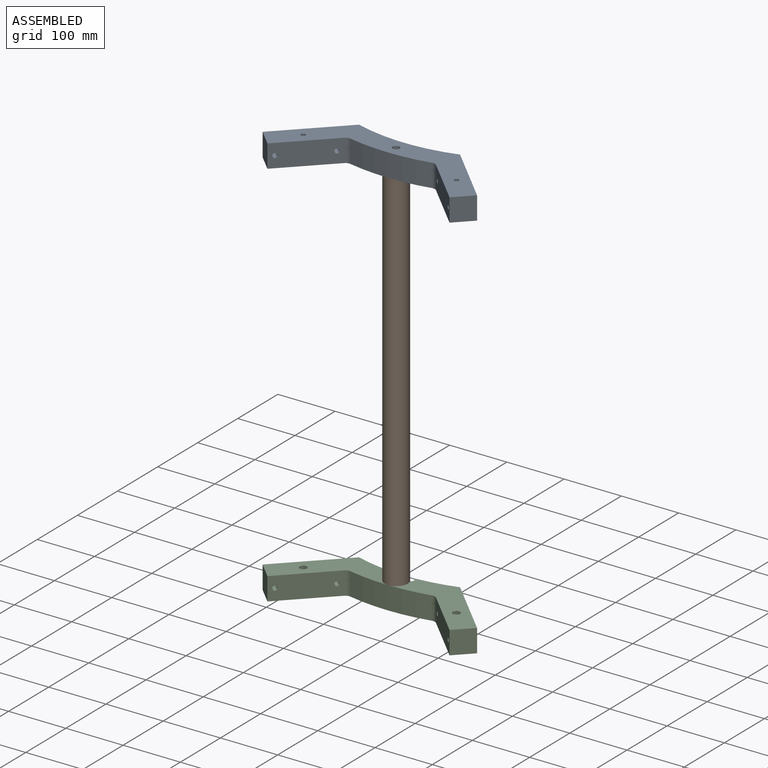
[diagram: assembled view]
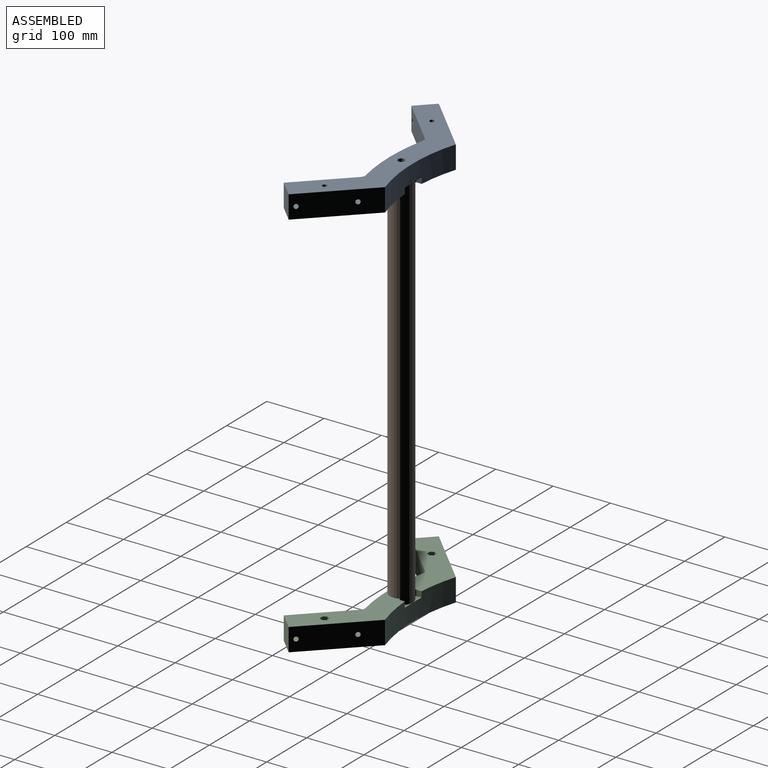
[diagram: assembled view, second angle]
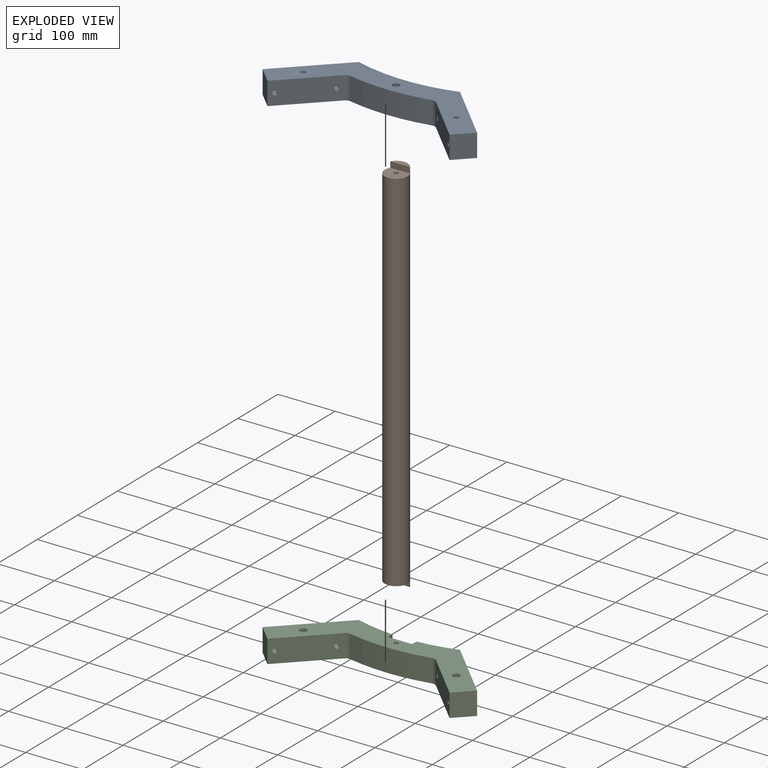
[diagram: exploded view]
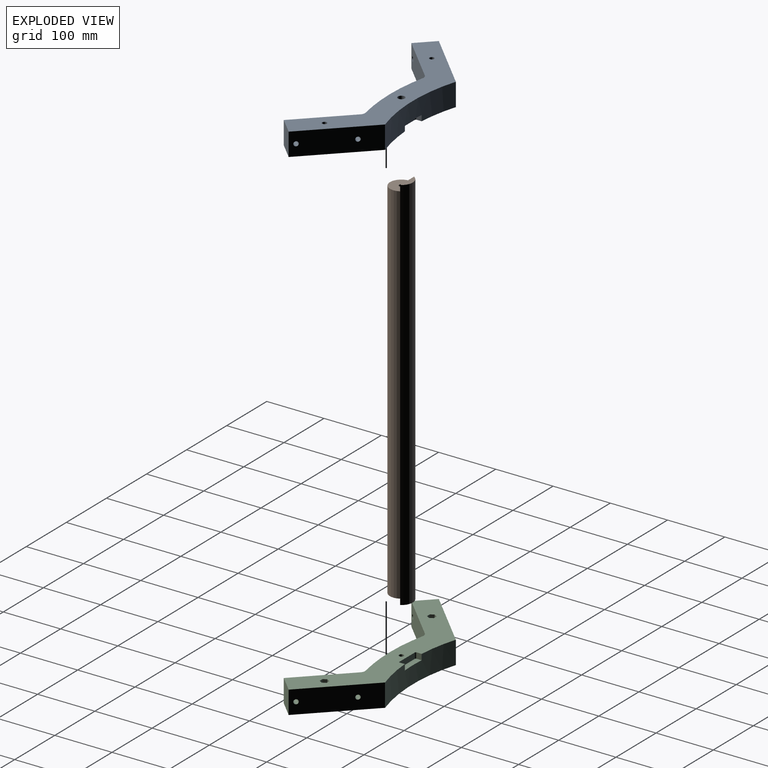
[diagram: exploded view, second angle]
ASSEMBLY  parts=3 mates=2
PART A: 41 faces, bbox 374.6x127.3x40 mm
  f0: plane 374.61x127.28mm, normal (0,0,-1), area 16216.8mm2, adj f1,f4,f5,f6,f7,f8,f9,f10
  f1: cylinder r=300mm len=176.62mm, axis (0,0,1), area 6750.5mm2, adj f0,f5,f13,f14,f35,f36,f37
  f2: cylinder r=4mm len=30mm, axis (0,0,1), area 754mm2, adj f14,f28
  f3: cylinder r=4mm len=30mm, axis (0,0,1), area 754mm2, adj f14,f21
  f4: cylinder r=4mm len=34mm, axis (0,0,1), area 854.5mm2, adj f0,f19
  f5: plane 99x99mm, normal (0.71,0.71,0), area 5499.5mm2, adj f0,f1,f6,f14,f17,f18
  f6: plane 40x28.28mm, normal (0.71,-0.71,0), area 1600mm2, adj f0,f5,f7,f14
  f7: plane 78.79x78.79mm, normal (-0.71,-0.71,0), area 4356.5mm2, adj f0,f6,f8,f14,f17,f18
  f8: cylinder r=10mm len=40mm, axis (0,0,1), area 398.4mm2, adj f0,f7,f9,f14
  f9: cylinder r=340mm len=142.14mm, axis (0,0,1), area 5727.7mm2, adj f0,f8,f10,f14
  f10: cylinder r=10mm len=40mm, axis (0,0,1), area 398.4mm2, adj f0,f9,f11,f14
  f11: plane 78.79x78.79mm, normal (0.71,-0.71,0), area 4356.5mm2, adj f0,f10,f12,f14,f15,f16
  f12: plane 40x28.28mm, normal (-0.71,-0.71,0), area 1600mm2, adj f0,f11,f13,f14
  f13: plane 99x99mm, normal (-0.71,0.71,0), area 5499.5mm2, adj f0,f1,f12,f14,f15,f16
  f14: plane 374.61x127.28mm, normal (0,0,1), area 16731.4mm2, adj f1,f2,f3,f5,f6,f7,f8,f9
  f15: cylinder r=4mm len=33.94mm, axis (0.71,-0.71,0), area 1005.3mm2, adj f11,f13
  f16: cylinder r=4mm len=33.94mm, axis (0.71,-0.71,0), area 1005.3mm2, adj f11,f13
  f17: cylinder r=4mm len=33.94mm, axis (-0.71,-0.71,0), area 1005.3mm2, adj f5,f7
  f18: cylinder r=4mm len=33.94mm, axis (-0.71,-0.71,0), area 1005.3mm2, adj f5,f7
  f19: plane 12x12mm, normal (0,0,1), area 62.8mm2, adj f4,f20
  f20: cylinder r=6mm len=12mm, axis (0,0,1), area 226.2mm2, adj f14,f19
  f21: plane 13.86x12mm, normal (0,0,-1), area 74.4mm2, adj f3,f22,f23,f24,f25,f26,f27
  f22: plane 10x6mm, normal (0.87,0.5,0), area 69.3mm2, adj f0,f21,f23,f27
  f23: plane 10x6mm, normal (0.87,-0.5,0), area 69.3mm2, adj f0,f21,f22,f24
  f24: plane 10x6.93mm, normal (0,-1,0), area 69.3mm2, adj f0,f21,f23,f25
  f25: plane 10x6mm, normal (-0.87,-0.5,0), area 69.3mm2, adj f0,f21,f24,f26
  f26: plane 10x6mm, normal (-0.87,0.5,0), area 69.3mm2, adj f0,f21,f25,f27
  f27: plane 10x6.93mm, normal (0,1,0), area 69.3mm2, adj f0,f21,f22,f26
  f28: plane 13.86x12mm, normal (0,0,-1), area 74.4mm2, adj f2,f29,f30,f31,f32,f33,f34
  f29: plane 10x6mm, normal (-0.87,0.5,0), area 69.3mm2, adj f0,f28,f30,f34
  f30: plane 10x6.93mm, normal (0,1,0), area 69.3mm2, adj f0,f28,f29,f31
  f31: plane 10x6mm, normal (0.87,0.5,0), area 69.3mm2, adj f0,f28,f30,f32
  f32: plane 10x6mm, normal (0.87,-0.5,0), area 69.3mm2, adj f0,f28,f31,f33
  f33: plane 10x6.93mm, normal (0,-1,0), area 69.3mm2, adj f0,f28,f32,f34
  f34: plane 10x6mm, normal (-0.87,-0.5,0), area 69.3mm2, adj f0,f28,f29,f33
  f35: plane 10x8.74mm, normal (-1,0,0), area 87.4mm2, adj f0,f1,f37,f38
  f36: plane 10x8.74mm, normal (1,0,0), area 87.4mm2, adj f0,f1,f37,f40
  f37: plane 42x10.74mm, normal (0,0,-1), area 428.6mm2, adj f1,f35,f36,f38,f39,f40
  f38: cylinder r=2mm len=10mm, axis (0,0,-1), area 31.4mm2, adj f0,f35,f37,f39
  f39: plane 38x10mm, normal (0,1,0), area 380mm2, adj f0,f37,f38,f40
  f40: cylinder r=2mm len=10mm, axis (0,0,-1), area 31.4mm2, adj f0,f36,f37,f39
PART B: 11 faces, bbox 40x40x663 mm
  f0: plane 40x30mm, normal (0,0,-1), area 960.7mm2, adj f2,f5,f9
  f1: plane 40x30mm, normal (0,0,1), area 960.7mm2, adj f2,f3,f7
  f2: cylinder r=20mm len=663mm, axis (0,0,1), area 81639.5mm2, adj f0,f1,f7,f8,f9,f10
  f3: cylinder r=4mm len=25mm, axis (0,0,1), area 628.3mm2, adj f1,f4
  f4: plane 8x8mm, normal (0,0,1), area 50.3mm2, adj f3
  f5: cylinder r=4mm len=25mm, axis (0,0,-1), area 628.3mm2, adj f0,f6
  f6: plane 8x8mm, normal (0,0,-1), area 50.3mm2, adj f5
  f7: plane 34.64x10mm, normal (0,-1,0), area 346.4mm2, adj f1,f2,f8
  f8: plane 34.64x10mm, normal (0,0,1), area 245.7mm2, adj f2,f7
  f9: plane 34.64x10mm, normal (0,-1,0), area 346.4mm2, adj f0,f2,f10
  f10: plane 34.64x10mm, normal (0,0,-1), area 245.7mm2, adj f2,f9
PART C: same geometry as A
PLACE A t=(-213.98,137.13,-180.7)mm
PLACE B t=(-213.98,137.13,-180.7)mm
PLACE C rot(axis=(0,1,0),180deg) t=(-213.98,137.13,597.9)mm
MATE fastened A.f4 <-> B.f2  axis (0,0,-1) through (-213.98,15.53,530.1)mm
MATE fastened C.f4 <-> B.f2  axis (0,0,1) through (-213.98,15.53,-112.9)mm
